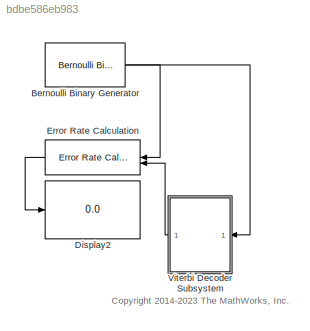
MODEL slx_bdbe586eb983
KIND model
CONFIG AbsTol = auto
CONFIG EnableMultiTasking = off
CONFIG FixedStep = auto
CONFIG InitFcn = EbNo=3;
CONFIG MaxStep = auto
CONFIG MinStep = auto
CONFIG RelTol = 1e-3
CONFIG SampleTimeConstraint = Unconstrained
CONFIG SolverName = VariableStepAuto
CONFIG StartTime = 0.0
CONFIG StopTime = 10.0
BLOCK [Reference] Bernoulli Binary Generator  REF=commrandsrc3/Bernoulli Binary
Generator
  SourceBlock = commrandsrc3/Bernoulli Binary\nGenerator
  SourceType = Bernoulli Binary Generator
BLOCK [Display] Display2
  Decimation = 1
  NameLocation = top
BLOCK [Reference] Error Rate Calculation  REF=commsink2/Error Rate
Calculation
  SourceBlock = commsink2/Error Rate\nCalculation
  SourceType = Error Rate Calculation
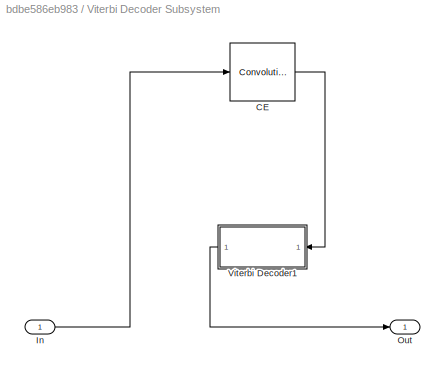
BLOCK [SubSystem] Viterbi Decoder Subsystem
BLOCK [Reference] Viterbi Decoder Subsystem/CE  REF=commcnvcod2/Convolutional
Encoder
  SourceBlock = commcnvcod2/Convolutional\nEncoder
  SourceType = Convolutional Encoder
BLOCK [Inport] Viterbi Decoder Subsystem/In
  OutDataTypeStr = boolean
  PortDimensions = 1
  SampleTime = 1
BLOCK [Outport] Viterbi Decoder Subsystem/Out
  SampleTime = 1
  VectorParamsAs1DForOutWhenUnconnected = off
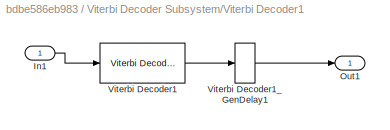
BLOCK [SubSystem] Viterbi Decoder Subsystem/Viterbi Decoder1
BLOCK [Inport] Viterbi Decoder Subsystem/Viterbi Decoder1/In1
BLOCK [Outport] Viterbi Decoder Subsystem/Viterbi Decoder1/Out1
BLOCK [Reference] Viterbi Decoder Subsystem/Viterbi Decoder1/Viterbi Decoder1  REF=commcnvcod2/Viterbi Decoder
  SourceBlock = commcnvcod2/Viterbi Decoder
  SourceType = Viterbi Decoder
BLOCK [Delay] Viterbi Decoder Subsystem/Viterbi Decoder1/Viterbi Decoder1_GenDelay1
  DelayLength = 16
  InputPortMap = u0
ANNOTATION (root): <copyright redacted>
NET Bernoulli Binary Generator:1 -> Error Rate Calculation:1, Viterbi Decoder Subsystem:1
LINE Error Rate Calculation:1 -> Display2:1
LINE Viterbi Decoder Subsystem/CE:1 -> Viterbi Decoder Subsystem/Viterbi Decoder1:1
LINE Viterbi Decoder Subsystem/In:1 -> Viterbi Decoder Subsystem/CE:1
LINE Viterbi Decoder Subsystem/Viterbi Decoder1/In1:1 -> Viterbi Decoder Subsystem/Viterbi Decoder1/Viterbi Decoder1:1
LINE Viterbi Decoder Subsystem/Viterbi Decoder1/Viterbi Decoder1:1 -> Viterbi Decoder Subsystem/Viterbi Decoder1/Viterbi Decoder1_GenDelay1:1
LINE Viterbi Decoder Subsystem/Viterbi Decoder1/Viterbi Decoder1_GenDelay1:1 -> Viterbi Decoder Subsystem/Viterbi Decoder1/Out1:1
LINE Viterbi Decoder Subsystem/Viterbi Decoder1:1 -> Viterbi Decoder Subsystem/Out:1
LINE Viterbi Decoder Subsystem:1 -> Error Rate Calculation:2
note: NET lines group one-source signal fan-out (src -> all destinations, sorted); 1:1 wires keep LINE
